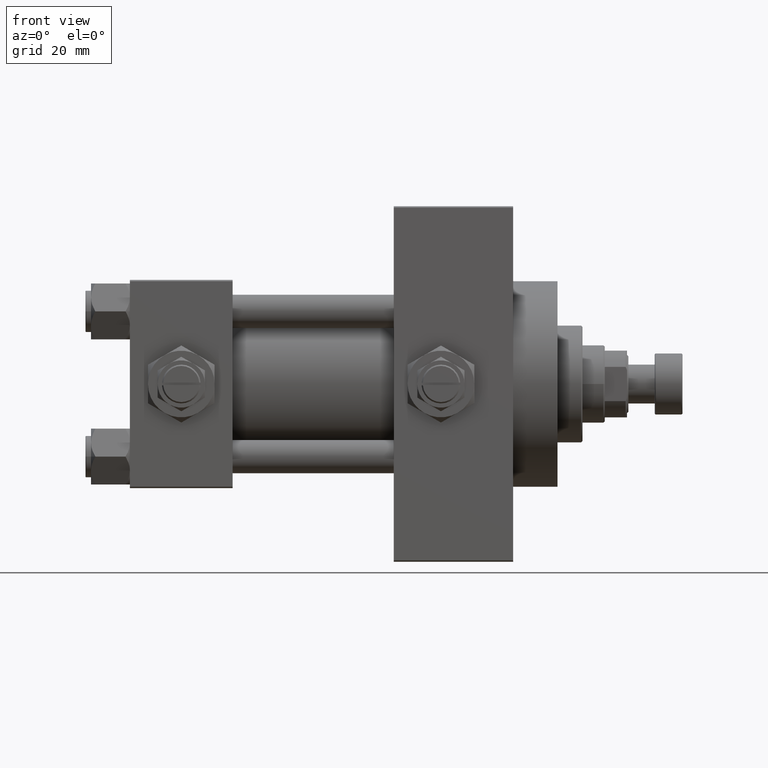
[diagram: clean part render]
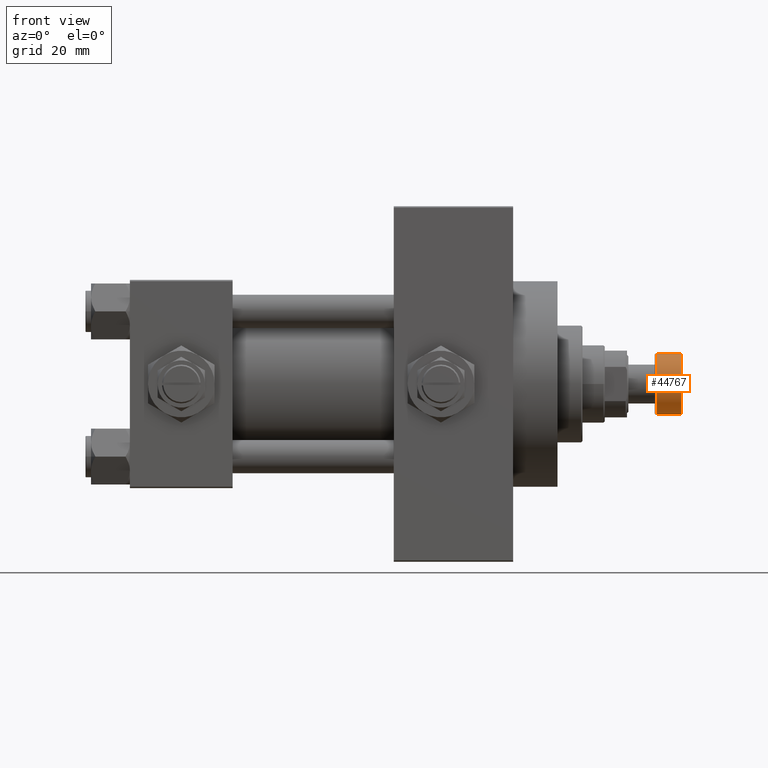
[diagram: same view with one face highlighted and labeled with its STEP entity id]
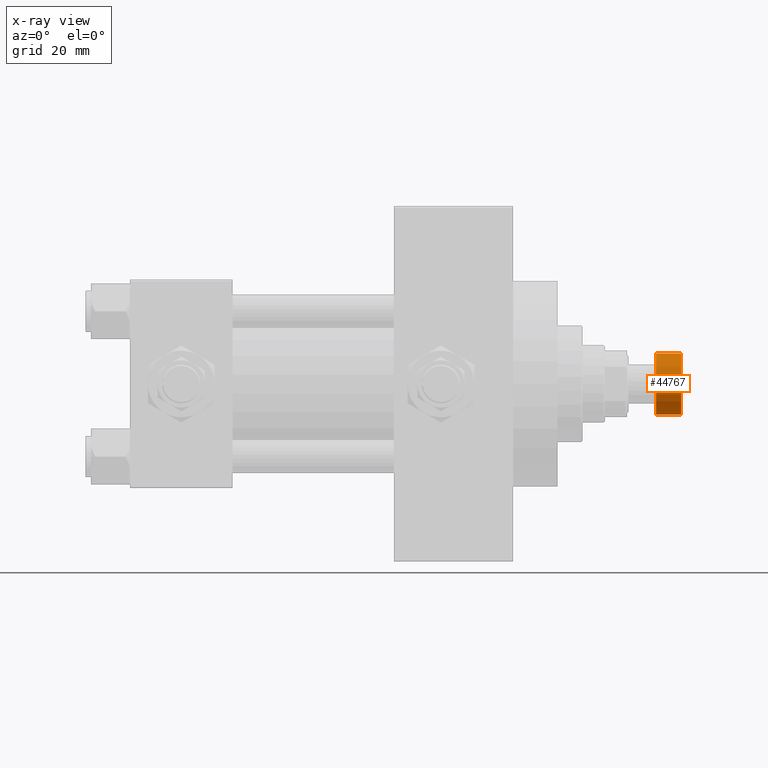
[diagram: x-ray of the same camera — body ghosted, the highlighted face saturated]
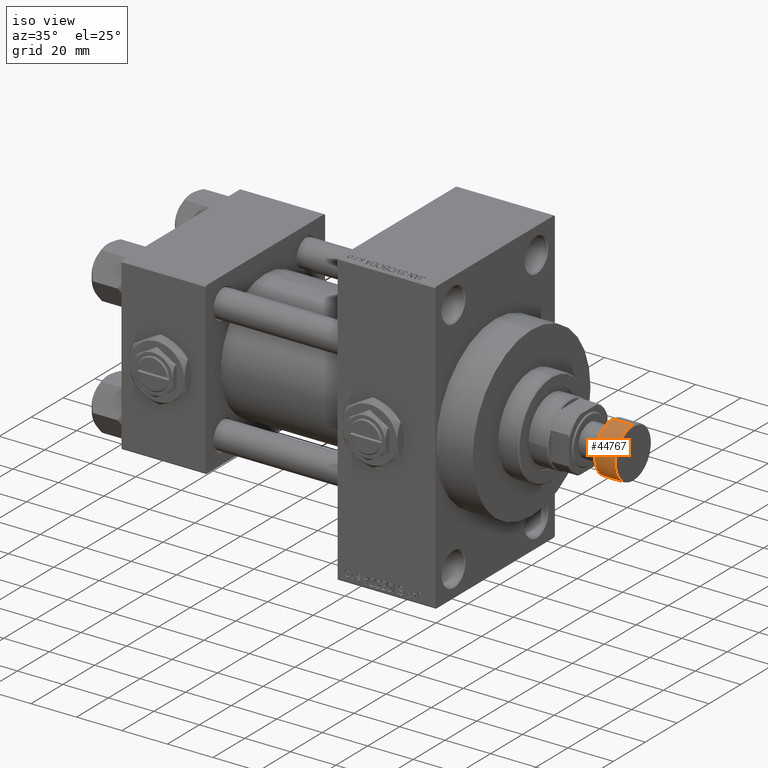
[diagram: same view with one face highlighted and labeled with its STEP entity id]
A machine part, front view. The second image highlights one B-rep face of the part: STEP entity #44767.
The next image is the same camera in x-ray: the body ghosted, the highlighted face saturated — about 0% of this face is hidden behind the body in this view.
A second angle (iso view) of the same face is appended — the face is thin or edge-on in the first view.
In plain terms, the highlighted cylindrical surface (edge-blend (fillet) strip) has radius 11 mm, axis along (1, 0, 0).
Its self-contained STEP definition (entity closure, byte-faithful):
#947 = EDGE_CURVE ( 'NONE', #39670, #32265, #3582, .T. ) ;
#3582 = LINE ( 'NONE', #14677, #46394 ) ;
#6252 = DIRECTION ( 'NONE',  ( 1.000000000000000000, 0.000000000000000000, 0.000000000000000000 ) ) ;
#6438 = CARTESIAN_POINT ( 'NONE',  ( 11.00000000000000000, 0.000000000000000000, -10.00000000000000000 ) ) ;
#8106 = ORIENTED_EDGE ( 'NONE', *, *, #9428, .T. ) ;
#9428 = EDGE_CURVE ( 'NONE', #40130, #43497, #36882, .T. ) ;
#13865 = ORIENTED_EDGE ( 'NONE', *, *, #947, .F. ) ;
#14616 = ORIENTED_EDGE ( 'NONE', *, *, #40296, .T. ) ;
#14677 = CARTESIAN_POINT ( 'NONE',  ( -11.00000000000000000, 1.347111479062088405E-15, -10.00000000000000000 ) ) ;
#16655 = ORIENTED_EDGE ( 'NONE', *, *, #31270, .T. ) ;
#17882 = DIRECTION ( 'NONE',  ( 1.000000000000000000, 0.000000000000000000, 0.000000000000000000 ) ) ;
#18372 = CIRCLE ( 'NONE', #43235, 11.00000000000000000 ) ;
#20385 = CIRCLE ( 'NONE', #38926, 11.00000000000000000 ) ;
#20711 = DIRECTION ( 'NONE',  ( 1.000000000000000000, 0.000000000000000000, 0.000000000000000000 ) ) ;
#20773 = DIRECTION ( 'NONE',  ( 0.000000000000000000, 0.000000000000000000, 1.000000000000000000 ) ) ;
#21722 = DIRECTION ( 'NONE',  ( 0.000000000000000000, 0.000000000000000000, 1.000000000000000000 ) ) ;
#22270 = CARTESIAN_POINT ( 'NONE',  ( -11.00000000000000000, 1.347111479062088405E-15, -9.500000000000000000 ) ) ;
#25493 = CARTESIAN_POINT ( 'NONE',  ( 0.000000000000000000, 0.000000000000000000, -9.500000000000000000 ) ) ;
#25674 = VECTOR ( 'NONE', #20773, 1000.000000000000000 ) ;
#26974 = DIRECTION ( 'NONE',  ( 0.000000000000000000, 0.000000000000000000, 1.000000000000000000 ) ) ;
#27098 = AXIS2_PLACEMENT_3D ( 'NONE', #40725, #40225, #6252 ) ;
#29207 = CARTESIAN_POINT ( 'NONE',  ( 11.00000000000000000, 0.000000000000000000, -0.5000000000000004441 ) ) ;
#31270 = EDGE_CURVE ( 'NONE', #39670, #40130, #20385, .T. ) ;
#32265 = VERTEX_POINT ( 'NONE', #42460 ) ;
#32425 = CYLINDRICAL_SURFACE ( 'NONE', #27098, 11.00000000000000000 ) ;
#36882 = LINE ( 'NONE', #6438, #25674 ) ;
#37007 = DIRECTION ( 'NONE',  ( -0.000000000000000000, -0.000000000000000000, -1.000000000000000000 ) ) ;
#37066 = CARTESIAN_POINT ( 'NONE',  ( 11.00000000000000000, 0.000000000000000000, -9.500000000000000000 ) ) ;
#38926 = AXIS2_PLACEMENT_3D ( 'NONE', #25493, #21722, #20711 ) ;
#39670 = VERTEX_POINT ( 'NONE', #22270 ) ;
#40130 = VERTEX_POINT ( 'NONE', #37066 ) ;
#40225 = DIRECTION ( 'NONE',  ( 0.000000000000000000, 0.000000000000000000, 1.000000000000000000 ) ) ;
#40296 = EDGE_CURVE ( 'NONE', #43497, #32265, #18372, .T. ) ;
#40725 = CARTESIAN_POINT ( 'NONE',  ( 0.000000000000000000, 0.000000000000000000, -10.00000000000000000 ) ) ;
#41282 = CARTESIAN_POINT ( 'NONE',  ( 0.000000000000000000, 0.000000000000000000, -0.5000000000000004441 ) ) ;
#42460 = CARTESIAN_POINT ( 'NONE',  ( -11.00000000000000000, 1.347111479062088405E-15, -0.5000000000000004441 ) ) ;
#43235 = AXIS2_PLACEMENT_3D ( 'NONE', #41282, #37007, #17882 ) ;
#43497 = VERTEX_POINT ( 'NONE', #29207 ) ;
#43811 = EDGE_LOOP ( 'NONE', ( #13865, #16655, #8106, #14616 ) ) ;
#44767 = ADVANCED_FACE ( 'NONE', ( #48281 ), #32425, .T. ) ;
#46394 = VECTOR ( 'NONE', #26974, 1000.000000000000000 ) ;
#48281 = FACE_OUTER_BOUND ( 'NONE', #43811, .T. ) ;